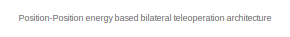
[diagram: root canvas - part 1/4, top left region]
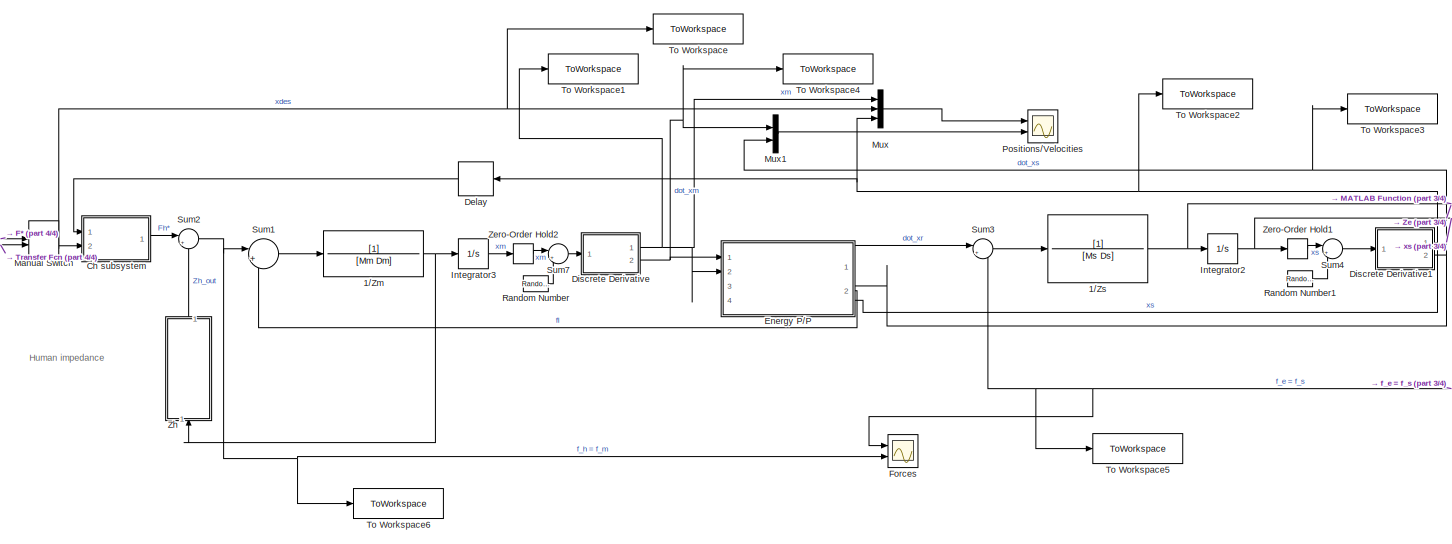
[diagram: root canvas - part 2/4, center side, full height]
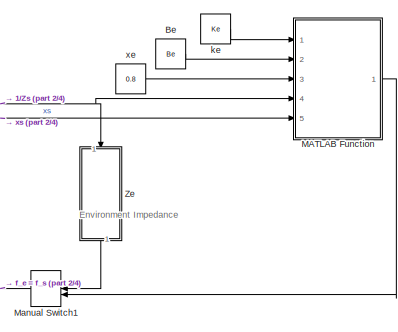
[diagram: root canvas - part 3/4, middle right region]
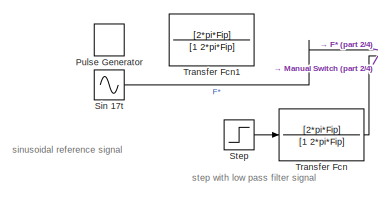
[diagram: root canvas - part 4/4, middle left region]
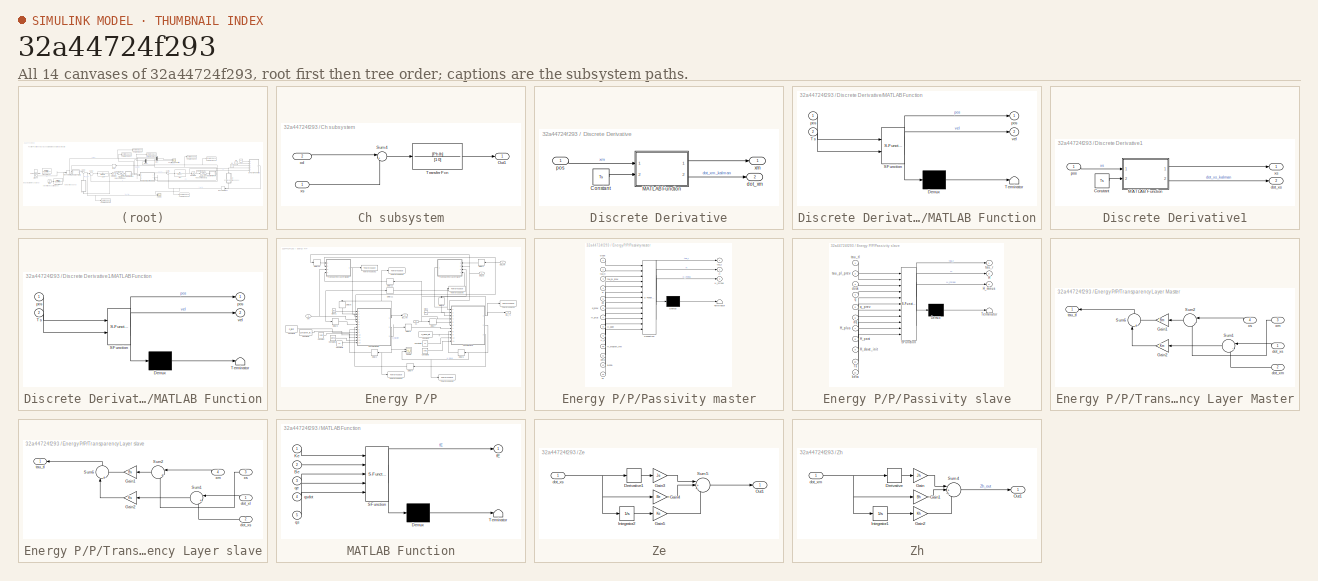
[diagram: thumbnail index - all 14 canvases of the model, root first then tree order]
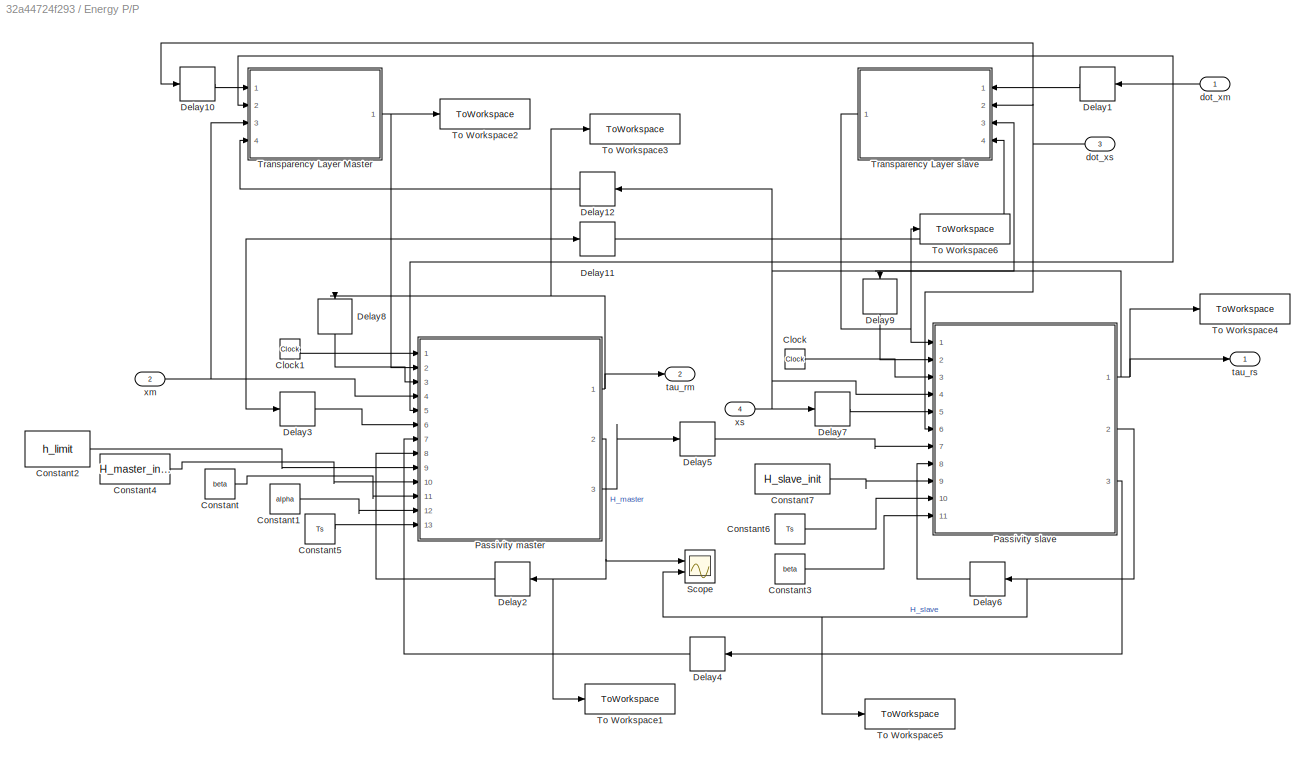
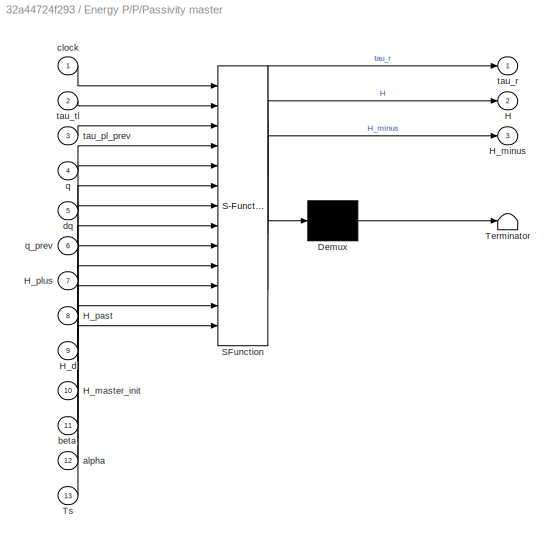
MODEL slx_32a44724f293
KIND model
CONFIG AbsTol = auto
CONFIG EnableMultiTasking = off
CONFIG FixedStep = Ts
CONFIG MaxStep = auto
CONFIG MinStep = auto
CONFIG RelTol = 1e-3
CONFIG SampleTimeConstraint = Unconstrained
CONFIG SolverName = FixedStepAuto
CONFIG StartTime = 0.0
CONFIG StopTime = 30
BLOCK [TransferFcn] 1//Zm
  Denominator = [Mm Dm]
  NameLocation = top
BLOCK [TransferFcn] 1//Zs
  Denominator = [Ms Ds]
  NameLocation = top
BLOCK [Constant] Be
  NameLocation = top
  Value = Be
BLOCK [SubSystem] Ch subsystem
  Ports = [2, 1]
  RequestExecContextInheritance = off
BLOCK [Outport] Ch subsystem/Out1
BLOCK [Sum] Ch subsystem/Sum4
  Inputs = |+-
  Ports = [2, 1]
BLOCK [TransferFcn] Ch subsystem/Transfer Fcn
  Denominator = [1 0]
  Numerator = [Ph Ih]
BLOCK [Inport] Ch subsystem/xd
  Port = 2
BLOCK [Inport] Ch subsystem/xs
BLOCK [Delay] Delay
  DelayLength = delay
  InputPortMap = u0
  NameLocation = top
  Ports = [1, 1]
  SampleTime = Ts
BLOCK [SubSystem] Discrete Derivative
  Ports = [1, 2]
  RequestExecContextInheritance = off
BLOCK [Constant] Discrete Derivative/Constant
  Value = Ts
BLOCK [SubSystem] Discrete Derivative/MATLAB Function
  ErrorFcn = Stateflow.Translate.translate
  PermitHierarchicalResolution = ExplicitOnly
  Ports = [2, 2]
  RequestExecContextInheritance = off
  SFBlockType = MATLAB Function
  TreatAsAtomicUnit = on
BLOCK [Demux] Discrete Derivative/MATLAB Function/ Demux 
  Outputs = 1
  Ports = [1, 1]
BLOCK [S-Function] Discrete Derivative/MATLAB Function/ SFunction 
  EnableBusSupport = on
  FunctionName = sf_sfun
  PortCounts = [2 3]
  Ports = [2, 3]
  SFcnIsStateOwnerBlock = off
  SFunctionDeploymentMode = off
  Tag = Stateflow S-Function 4
BLOCK [Terminator] Discrete Derivative/MATLAB Function/ Terminator 
BLOCK [Inport] Discrete Derivative/MATLAB Function/Ts
  Port = 2
BLOCK [Outport] Discrete Derivative/MATLAB Function/pos
BLOCK [Inport] Discrete Derivative/MATLAB Function/pos 
BLOCK [Outport] Discrete Derivative/MATLAB Function/vel
  Port = 2
BLOCK [Outport] Discrete Derivative/dot_xm
  Port = 2
BLOCK [Inport] Discrete Derivative/pos
BLOCK [Outport] Discrete Derivative/xm
BLOCK [SubSystem] Discrete Derivative1
  Ports = [1, 2]
  RequestExecContextInheritance = off
BLOCK [Constant] Discrete Derivative1/Constant
  Value = Ts
BLOCK [SubSystem] Discrete Derivative1/MATLAB Function
  ErrorFcn = Stateflow.Translate.translate
  PermitHierarchicalResolution = ExplicitOnly
  Ports = [2, 2]
  RequestExecContextInheritance = off
  SFBlockType = MATLAB Function
  TreatAsAtomicUnit = on
BLOCK [Demux] Discrete Derivative1/MATLAB Function/ Demux 
  Outputs = 1
  Ports = [1, 1]
BLOCK [S-Function] Discrete Derivative1/MATLAB Function/ SFunction 
  EnableBusSupport = on
  FunctionName = sf_sfun
  PortCounts = [2 3]
  Ports = [2, 3]
  SFcnIsStateOwnerBlock = off
  SFunctionDeploymentMode = off
  Tag = Stateflow S-Function 5
BLOCK [Terminator] Discrete Derivative1/MATLAB Function/ Terminator 
BLOCK [Inport] Discrete Derivative1/MATLAB Function/Ts
  Port = 2
BLOCK [Outport] Discrete Derivative1/MATLAB Function/pos
BLOCK [Inport] Discrete Derivative1/MATLAB Function/pos 
BLOCK [Outport] Discrete Derivative1/MATLAB Function/vel
  Port = 2
BLOCK [Outport] Discrete Derivative1/dot_xs
  Port = 2
BLOCK [Inport] Discrete Derivative1/pos
BLOCK [Outport] Discrete Derivative1/xs
BLOCK [SubSystem] Energy P//P
  PortSchema = {"entries":[{"content":{"sides":[{"content":{"connectorIds":["In1","In2"]},"type":"ConnectorPlacement.EquallySpacedRectSide","uuid":"f2b5b233-4bc9-48fa-8c02-3c8bfabc8edf"},{"content":{"connectorIds":["Out1","In3","In4","Out2"],"side":"RIGHT"},"type":"ConnectorPlacement.EquallySpacedRectSide","uuid":"567bdcc6-c695-4210-9521-fb074471be82"},{"content":{"connectorIds":[],"side":"TOP"},"type":"Connecto...<+409ch>
  Ports = [4, 2]
  RequestExecContextInheritance = off
BLOCK [Clock] Energy P//P/Clock
BLOCK [Clock] Energy P//P/Clock1
BLOCK [Constant] Energy P//P/Constant
  Value = beta
BLOCK [Constant] Energy P//P/Constant1
  Value = alpha
BLOCK [Constant] Energy P//P/Constant2
  Value = h_limit
BLOCK [Constant] Energy P//P/Constant3
  Value = beta
BLOCK [Constant] Energy P//P/Constant4
  Value = H_master_init
BLOCK [Constant] Energy P//P/Constant5
  Value = Ts
BLOCK [Constant] Energy P//P/Constant6
  Value = Ts
BLOCK [Constant] Energy P//P/Constant7
  Value = H_slave_init
BLOCK [Delay] Energy P//P/Delay1
  DelayLength = delay
  InputPortMap = u0
  NameLocation = top
  Ports = [1, 1]
  SampleTime = Ts
BLOCK [Delay] Energy P//P/Delay10
  DelayLength = delay
  InputPortMap = u0
  Ports = [1, 1]
  SampleTime = Ts
BLOCK [Delay] Energy P//P/Delay11
  DelayLength = delay
  InputPortMap = u0
  Ports = [1, 1]
  SampleTime = Ts
BLOCK [Delay] Energy P//P/Delay12
  DelayLength = delay
  InputPortMap = u0
  NameLocation = top
  Ports = [1, 1]
  SampleTime = Ts
BLOCK [Delay] Energy P//P/Delay2
  DelayLength = 1
  InputPortMap = u0
  NameLocation = top
  Ports = [1, 1]
  SampleTime = Ts
BLOCK [Delay] Energy P//P/Delay3
  DelayLength = 1
  InputPortMap = u0
  Ports = [1, 1]
  SampleTime = Ts
BLOCK [Delay] Energy P//P/Delay4
  DelayLength = delay
  InputPortMap = u0
  NameLocation = top
  Ports = [1, 1]
  SampleTime = Ts
BLOCK [Delay] Energy P//P/Delay5
  DelayLength = delay
  InputPortMap = u0
  Ports = [1, 1]
  SampleTime = Ts
BLOCK [Delay] Energy P//P/Delay6
  DelayLength = 1
  InputPortMap = u0
  NameLocation = top
  Ports = [1, 1]
  SampleTime = Ts
BLOCK [Delay] Energy P//P/Delay7
  DelayLength = 1
  InputPortMap = u0
  Ports = [1, 1]
  SampleTime = Ts
BLOCK [Delay] Energy P//P/Delay8
  DelayLength = 1
  InputPortMap = u0
  NameLocation = left
  Ports = [1, 1]
  SampleTime = Ts
BLOCK [Delay] Energy P//P/Delay9
  DelayLength = 1
  InputPortMap = u0
  NameLocation = left
  Ports = [1, 1]
  SampleTime = Ts
BLOCK [SubSystem] Energy P//P/Passivity master
  ErrorFcn = Stateflow.Translate.translate
  PermitHierarchicalResolution = ExplicitOnly
  Ports = [13, 3]
  RequestExecContextInheritance = off
  SFBlockType = MATLAB Function
  TreatAsAtomicUnit = on
BLOCK [Demux] Energy P//P/Passivity master/ Demux 
  Outputs = 1
  Ports = [1, 1]
BLOCK [S-Function] Energy P//P/Passivity master/ SFunction 
  EnableBusSupport = on
  FunctionName = sf_sfun
  PortCounts = [13 4]
  Ports = [13, 4]
  SFcnIsStateOwnerBlock = off
  SFunctionDeploymentMode = off
  Tag = Stateflow S-Function 1
BLOCK [Terminator] Energy P//P/Passivity master/ Terminator 
BLOCK [Outport] Energy P//P/Passivity master/H
  Port = 2
BLOCK [Inport] Energy P//P/Passivity master/H_d
  Port = 9
BLOCK [Inport] Energy P//P/Passivity master/H_master_init
  Port = 10
BLOCK [Outport] Energy P//P/Passivity master/H_minus
  Port = 3
BLOCK [Inport] Energy P//P/Passivity master/H_past
  Port = 8
BLOCK [Inport] Energy P//P/Passivity master/H_plus
  Port = 7
BLOCK [Inport] Energy P//P/Passivity master/Ts
  Port = 13
BLOCK [Inport] Energy P//P/Passivity master/alpha
  Port = 12
BLOCK [Inport] Energy P//P/Passivity master/beta
  Port = 11
BLOCK [Inport] Energy P//P/Passivity master/clock
BLOCK [Inport] Energy P//P/Passivity master/dq
  Port = 5
BLOCK [Inport] Energy P//P/Passivity master/q
  Port = 4
BLOCK [Inport] Energy P//P/Passivity master/q_prev
  Port = 6
BLOCK [Inport] Energy P//P/Passivity master/tau_pl_prev
  Port = 3
BLOCK [Outport] Energy P//P/Passivity master/tau_r
BLOCK [Inport] Energy P//P/Passivity master/tau_tl
  Port = 2
BLOCK [SubSystem] Energy P//P/Passivity slave
  ErrorFcn = Stateflow.Translate.translate
  PermitHierarchicalResolution = ExplicitOnly
  Ports = [11, 3]
  RequestExecContextInheritance = off
  SFBlockType = MATLAB Function
  TreatAsAtomicUnit = on
BLOCK [Demux] Energy P//P/Passivity slave/ Demux 
  Outputs = 1
  Ports = [1, 1]
BLOCK [S-Function] Energy P//P/Passivity slave/ SFunction 
  EnableBusSupport = on
  FunctionName = sf_sfun
  PortCounts = [11 4]
  Ports = [11, 4]
  SFcnIsStateOwnerBlock = off
  SFunctionDeploymentMode = off
  Tag = Stateflow S-Function 3
BLOCK [Terminator] Energy P//P/Passivity slave/ Terminator 
BLOCK [Outport] Energy P//P/Passivity slave/H
  Port = 2
BLOCK [Outport] Energy P//P/Passivity slave/H_minus
  Port = 3
BLOCK [Inport] Energy P//P/Passivity slave/H_past
  Port = 8
BLOCK [Inport] Energy P//P/Passivity slave/H_plus
  Port = 7
BLOCK [Inport] Energy P//P/Passivity slave/H_slave_init
  Port = 9
BLOCK [Inport] Energy P//P/Passivity slave/Ts
  Port = 10
BLOCK [Inport] Energy P//P/Passivity slave/beta
  Port = 11
BLOCK [Inport] Energy P//P/Passivity slave/clock
  Port = 3
BLOCK [Inport] Energy P//P/Passivity slave/dq
  Port = 6
BLOCK [Inport] Energy P//P/Passivity slave/q
  Port = 4
BLOCK [Inport] Energy P//P/Passivity slave/q_prev
  Port = 5
BLOCK [Inport] Energy P//P/Passivity slave/tau_pl_prev
  Port = 2
BLOCK [Outport] Energy P//P/Passivity slave/tau_r
BLOCK [Inport] Energy P//P/Passivity slave/tau_tl
BLOCK [Scope] Energy P//P/Scope
  Floating = off
  NumInputPorts = 2
  Ports = [2]
  ScopeSpecificationString = Simulink.scopes.TimeScopeBlockCfg('CurrentConfiguration', extmgr.ConfigurationSet(extmgr.Configuration('Core','General UI',true),extmgr.Configuration('Core','Source UI',true),extmgr.Configuration('Sources','WiredSimulink',true,'DataLoggingVariableName','ScopeData1'),extmgr.Configuration('Visuals','Time Domain',true,'SerializedDisplays',{struct('MinYLimReal','-372.95583','MaxYLimReal','42.32843','Y...<+1506ch>
BLOCK [ToWorkspace] Energy P//P/To Workspace1
  FixptAsFi = on
  MaxDataPoints = inf
  Ports = [1]
  SampleTime = -1
  SaveFormat = Timeseries
  VariableName = H_master
BLOCK [ToWorkspace] Energy P//P/To Workspace2
  FixptAsFi = on
  MaxDataPoints = inf
  Ports = [1]
  SampleTime = -1
  SaveFormat = Timeseries
  VariableName = tau_tl_master
BLOCK [ToWorkspace] Energy P//P/To Workspace3
  FixptAsFi = on
  MaxDataPoints = inf
  Ports = [1]
  SampleTime = -1
  SaveFormat = Timeseries
  VariableName = tau_r_master
BLOCK [ToWorkspace] Energy P//P/To Workspace4
  FixptAsFi = on
  MaxDataPoints = inf
  Ports = [1]
  SampleTime = -1
  SaveFormat = Timeseries
  VariableName = tau_r_slave
BLOCK [ToWorkspace] Energy P//P/To Workspace5
  FixptAsFi = on
  MaxDataPoints = inf
  Ports = [1]
  SampleTime = -1
  SaveFormat = Timeseries
  VariableName = H_slave
BLOCK [ToWorkspace] Energy P//P/To Workspace6
  FixptAsFi = on
  MaxDataPoints = inf
  Ports = [1]
  SampleTime = -1
  SaveFormat = Timeseries
  VariableName = tau_tl_slave
BLOCK [SubSystem] Energy P//P/Transparency Layer Master
  Ports = [4, 1]
  RequestExecContextInheritance = off
BLOCK [Gain] Energy P//P/Transparency Layer Master/Gain1
  Gain = Bm
  NameLocation = top
BLOCK [Gain] Energy P//P/Transparency Layer Master/Gain2
  Gain = Km
  NameLocation = top
BLOCK [Sum] Energy P//P/Transparency Layer Master/Sum1
  Inputs = |-+
  NameLocation = top
  Ports = [2, 1]
BLOCK [Sum] Energy P//P/Transparency Layer Master/Sum2
  Inputs = |-+
  NameLocation = top
  Ports = [2, 1]
BLOCK [Sum] Energy P//P/Transparency Layer Master/Sum6
  Inputs = |++
  NameLocation = right
  Ports = [2, 1]
BLOCK [Inport] Energy P//P/Transparency Layer Master/dot_xm
  NameLocation = top
  Port = 2
BLOCK [Inport] Energy P//P/Transparency Layer Master/dot_xs
  NameLocation = top
BLOCK [Outport] Energy P//P/Transparency Layer Master/tau_tl
  NameLocation = top
BLOCK [Inport] Energy P//P/Transparency Layer Master/xm
  NameLocation = top
  Port = 3
BLOCK [Inport] Energy P//P/Transparency Layer Master/xs
  NameLocation = top
  Port = 4
BLOCK [SubSystem] Energy P//P/Transparency Layer slave
  NameLocation = top
  Ports = [4, 1]
  RequestExecContextInheritance = off
BLOCK [Gain] Energy P//P/Transparency Layer slave/Gain1
  Gain = Bs
  NameLocation = top
BLOCK [Gain] Energy P//P/Transparency Layer slave/Gain2
  Gain = Ks
  NameLocation = top
BLOCK [Sum] Energy P//P/Transparency Layer slave/Sum1
  Inputs = |+-
  NameLocation = top
  Ports = [2, 1]
BLOCK [Sum] Energy P//P/Transparency Layer slave/Sum2
  Inputs = |+-
  NameLocation = top
  Ports = [2, 1]
BLOCK [Sum] Energy P//P/Transparency Layer slave/Sum6
  Inputs = |++
  NameLocation = right
  Ports = [2, 1]
BLOCK [Inport] Energy P//P/Transparency Layer slave/dot_xl
  NameLocation = top
BLOCK [Inport] Energy P//P/Transparency Layer slave/dot_xs
  NameLocation = top
  Port = 2
BLOCK [Outport] Energy P//P/Transparency Layer slave/tau_tl
  NameLocation = top
BLOCK [Inport] Energy P//P/Transparency Layer slave/xm
  NameLocation = top
  Port = 4
BLOCK [Inport] Energy P//P/Transparency Layer slave/xs
  NameLocation = top
  Port = 3
BLOCK [Inport] Energy P//P/dot_xm
  NameLocation = top
BLOCK [Inport] Energy P//P/dot_xs
  NameLocation = top
  Port = 3
BLOCK [Outport] Energy P//P/tau_rm
  Port = 2
BLOCK [Outport] Energy P//P/tau_rs
BLOCK [Inport] Energy P//P/xm
  Port = 2
BLOCK [Inport] Energy P//P/xs
  Port = 4
BLOCK [Scope] Forces
  Floating = off
  NumInputPorts = 2
  Ports = [2]
  ScopeSpecificationString = Simulink.scopes.TimeScopeBlockCfg('CurrentConfiguration', extmgr.ConfigurationSet(extmgr.Configuration('Core','General UI',true),extmgr.Configuration('Core','Source UI',true),extmgr.Configuration('Sources','WiredSimulink',true,'DataLoggingVariableName','ScopeData1'),extmgr.Configuration('Visuals','Time Domain',true,'SerializedDisplays',{struct('MinYLimReal','-440.9297','MaxYLimReal','438.96432','Y...<+1504ch>
BLOCK [Integrator] Integrator2
  Ports = [1, 1]
BLOCK [Integrator] Integrator3
  Ports = [1, 1]
BLOCK [SubSystem] MATLAB Function
  ErrorFcn = Stateflow.Translate.translate
  PermitHierarchicalResolution = ExplicitOnly
  Ports = [5, 1]
  RequestExecContextInheritance = off
  SFBlockType = MATLAB Function
  TreatAsAtomicUnit = on
BLOCK [Demux] MATLAB Function/ Demux 
  Outputs = 1
  Ports = [1, 1]
BLOCK [S-Function] MATLAB Function/ SFunction 
  EnableBusSupport = on
  FunctionName = sf_sfun
  PortCounts = [5 2]
  Ports = [5, 2]
  SFcnIsStateOwnerBlock = off
  SFunctionDeploymentMode = off
  Tag = Stateflow S-Function 2
BLOCK [Terminator] MATLAB Function/ Terminator 
BLOCK [Inport] MATLAB Function/Be
  Port = 2
BLOCK [Inport] MATLAB Function/Ke
BLOCK [Outport] MATLAB Function/fE
BLOCK [Inport] MATLAB Function/qe
  Port = 3
BLOCK [Inport] MATLAB Function/qs
  Port = 5
BLOCK [Inport] MATLAB Function/qsdot
  Port = 4
BLOCK [ManualSwitch] Manual Switch
BLOCK [ManualSwitch] Manual Switch1
  CurrentSetting = 0
  NameLocation = top
BLOCK [Mux] Mux
  DisplayOption = bar
  Inputs = 3
  Ports = [3, 1]
BLOCK [Mux] Mux1
  DisplayOption = bar
  Inputs = 2
  Ports = [2, 1]
BLOCK [Scope] Positions//Velocities
  Floating = off
  NumInputPorts = 2
  Ports = [2]
  ScopeSpecificationString = Simulink.scopes.TimeScopeBlockCfg('CurrentConfiguration', extmgr.ConfigurationSet(extmgr.Configuration('Core','General UI',true),extmgr.Configuration('Core','Source UI',true),extmgr.Configuration('Sources','WiredSimulink',true),extmgr.Configuration('Visuals','Time Domain',true,'SerializedDisplays',{struct('MinYLimReal','-1.25','MaxYLimReal','1.25','YLabelReal','','MinYLimMag','0.00000','MaxYLimMag...<+2154ch>
BLOCK [DiscretePulseGenerator] Pulse Generator
  Amplitude = A
  PhaseDelay = 1
  Ports = [0, 1]
  PulseType = Time based
  PulseWidth = 50
BLOCK [RandomNumber] Random Number
  SampleTime = Ts
  Variance = VarianceVelocities
BLOCK [RandomNumber] Random Number1
  SampleTime = Ts
  Variance = VarianceVelocities
BLOCK [Sin] Sin 17t
  Amplitude = A
  Frequency = 2*pi*Fc
  Ports = [0, 1]
  SampleTime = 0
BLOCK [Step] Step
  After = A
  SampleTime = 0
BLOCK [Sum] Sum1
  Inputs = |+-
  Ports = [2, 1]
BLOCK [Sum] Sum2
  Inputs = |+-
  Ports = [2, 1]
BLOCK [Sum] Sum3
  Inputs = |+-
  Ports = [2, 1]
BLOCK [Sum] Sum4
  Inputs = |++
  Ports = [2, 1]
BLOCK [Sum] Sum7
  Inputs = |++
  Ports = [2, 1]
BLOCK [ToWorkspace] To Workspace
  FixptAsFi = on
  MaxDataPoints = inf
  Ports = [1]
  SampleTime = -1
  SaveFormat = Timeseries
  VariableName = xd
BLOCK [ToWorkspace] To Workspace1
  FixptAsFi = on
  MaxDataPoints = inf
  Ports = [1]
  SampleTime = -1
  SaveFormat = Timeseries
  VariableName = xm
BLOCK [ToWorkspace] To Workspace2
  FixptAsFi = on
  MaxDataPoints = inf
  Ports = [1]
  SampleTime = -1
  SaveFormat = Timeseries
  VariableName = xs
BLOCK [ToWorkspace] To Workspace3
  FixptAsFi = on
  MaxDataPoints = inf
  Ports = [1]
  SampleTime = -1
  SaveFormat = Timeseries
  VariableName = dot_xs
BLOCK [ToWorkspace] To Workspace4
  FixptAsFi = on
  MaxDataPoints = inf
  Ports = [1]
  SampleTime = -1
  SaveFormat = Timeseries
  VariableName = dot_xm
BLOCK [ToWorkspace] To Workspace5
  FixptAsFi = on
  MaxDataPoints = inf
  Ports = [1]
  SampleTime = -1
  SaveFormat = Timeseries
  VariableName = fe
BLOCK [ToWorkspace] To Workspace6
  FixptAsFi = on
  MaxDataPoints = inf
  Ports = [1]
  SampleTime = -1
  SaveFormat = Timeseries
  VariableName = fh
BLOCK [TransferFcn] Transfer Fcn
  Denominator = [1 2*pi*Fip]
  Numerator = [2*pi*Fip]
BLOCK [TransferFcn] Transfer Fcn1
  Denominator = [1 2*pi*Fip]
  Numerator = [2*pi*Fip]
BLOCK [SubSystem] Ze
  NameLocation = left
  Ports = [1, 1]
  RequestExecContextInheritance = off
BLOCK [Derivative] Ze/Derivative1
BLOCK [Gain] Ze/Gain3
  Gain = Je
BLOCK [Gain] Ze/Gain4
  Gain = Be
BLOCK [Gain] Ze/Gain5
  Gain = Ke
BLOCK [Integrator] Ze/Integrator2
  Ports = [1, 1]
BLOCK [Outport] Ze/Out1
BLOCK [Sum] Ze/Sum5
  Inputs = |+++
  Ports = [3, 1]
BLOCK [Inport] Ze/dot_xs
BLOCK [ZeroOrderHold] Zero-Order Hold1
  SampleTime = Ts
BLOCK [ZeroOrderHold] Zero-Order Hold2
  SampleTime = Ts
BLOCK [SubSystem] Zh
  NameLocation = right
  Ports = [1, 1]
  RequestExecContextInheritance = off
BLOCK [Derivative] Zh/Derivative
BLOCK [Gain] Zh/Gain
  Gain = Jh
BLOCK [Gain] Zh/Gain1
  Gain = Bh
BLOCK [Gain] Zh/Gain2
  Gain = Kh
BLOCK [Integrator] Zh/Integrator1
  Ports = [1, 1]
BLOCK [Outport] Zh/Out1
BLOCK [Sum] Zh/Sum4
  Inputs = |+++
  Ports = [3, 1]
BLOCK [Inport] Zh/dot_xm
BLOCK [Constant] ke
  NameLocation = top
  Value = Ke
BLOCK [Constant] xe
  NameLocation = top
  Value = 0.8
ANNOTATION (root): sinusoidal reference signal
ANNOTATION (root): step with low pass filter signal
ANNOTATION (root): Position-Position energy based bilateral teleoperation architecture
ANNOTATION (root): Environment Impedance
ANNOTATION (root): Human impedance
NET 1//Zm:1 -> Integrator3:1, Zh:1
NET 1//Zs:1 -> Integrator2:1, MATLAB Function:4, Ze:1
LINE Be:1 -> MATLAB Function:2
LINE Ch subsystem/Sum4:1 -> Ch subsystem/Transfer Fcn:1
LINE Ch subsystem/Transfer Fcn:1 -> Ch subsystem/Out1:1
LINE Ch subsystem/xd:1 -> Ch subsystem/Sum4:1
LINE Ch subsystem/xs:1 -> Ch subsystem/Sum4:2
LINE Ch subsystem:1 -> Sum2:1
LINE Delay:1 -> Ch subsystem:1
LINE Discrete Derivative/Constant:1 -> Discrete Derivative/MATLAB Function:2
LINE Discrete Derivative/MATLAB Function:1 -> Discrete Derivative/xm:1
LINE Discrete Derivative/MATLAB Function:2 -> Discrete Derivative/dot_xm:1
LINE Discrete Derivative/pos:1 -> Discrete Derivative/MATLAB Function:1
LINE Discrete Derivative1/Constant:1 -> Discrete Derivative1/MATLAB Function:2
LINE Discrete Derivative1/MATLAB Function:1 -> Discrete Derivative1/xs:1
LINE Discrete Derivative1/MATLAB Function:2 -> Discrete Derivative1/dot_xs:1
LINE Discrete Derivative1/pos:1 -> Discrete Derivative1/MATLAB Function:1
NET Discrete Derivative1:1 -> Delay:1, Energy P//P:4, Mux:3, To Workspace2:1
NET Discrete Derivative1:2 -> Energy P//P:3, Mux1:2, To Workspace3:1
NET Discrete Derivative:1 -> Energy P//P:2, Mux:1, To Workspace1:1
NET Discrete Derivative:2 -> Energy P//P:1, Mux1:1, To Workspace4:1
LINE Energy P//P/Clock1:1 -> Energy P//P/Passivity master:1
LINE Energy P//P/Clock:1 -> Energy P//P/Passivity slave:3
LINE Energy P//P/Constant1:1 -> Energy P//P/Passivity master:12
LINE Energy P//P/Constant2:1 -> Energy P//P/Passivity master:9
LINE Energy P//P/Constant3:1 -> Energy P//P/Passivity slave:11
LINE Energy P//P/Constant4:1 -> Energy P//P/Passivity master:10
LINE Energy P//P/Constant5:1 -> Energy P//P/Passivity master:13
LINE Energy P//P/Constant6:1 -> Energy P//P/Passivity slave:10
LINE Energy P//P/Constant7:1 -> Energy P//P/Passivity slave:9
LINE Energy P//P/Constant:1 -> Energy P//P/Passivity master:11
LINE Energy P//P/Delay10:1 -> Energy P//P/Transparency Layer Master:1
LINE Energy P//P/Delay11:1 -> Energy P//P/Transparency Layer slave:4
LINE Energy P//P/Delay12:1 -> Energy P//P/Transparency Layer Master:4
LINE Energy P//P/Delay1:1 -> Energy P//P/Transparency Layer slave:1
LINE Energy P//P/Delay2:1 -> Energy P//P/Passivity master:8
LINE Energy P//P/Delay3:1 -> Energy P//P/Passivity master:6
LINE Energy P//P/Delay4:1 -> Energy P//P/Passivity master:7
LINE Energy P//P/Delay5:1 -> Energy P//P/Passivity slave:7
LINE Energy P//P/Delay6:1 -> Energy P//P/Passivity slave:8
LINE Energy P//P/Delay7:1 -> Energy P//P/Passivity slave:5
LINE Energy P//P/Delay8:1 -> Energy P//P/Passivity master:3
LINE Energy P//P/Delay9:1 -> Energy P//P/Passivity slave:2
NET Energy P//P/Passivity master:1 -> Energy P//P/Delay8:1, Energy P//P/To Workspace3:1, Energy P//P/tau_rm:1
NET Energy P//P/Passivity master:2 -> Energy P//P/Delay2:1, Energy P//P/Scope:1, Energy P//P/To Workspace1:1
LINE Energy P//P/Passivity master:3 -> Energy P//P/Delay5:1
NET Energy P//P/Passivity slave:1 -> Energy P//P/Delay9:1, Energy P//P/To Workspace4:1, Energy P//P/tau_rs:1
NET Energy P//P/Passivity slave:2 -> Energy P//P/Delay6:1, Energy P//P/Scope:2, Energy P//P/To Workspace5:1
LINE Energy P//P/Passivity slave:3 -> Energy P//P/Delay4:1
LINE Energy P//P/Transparency Layer Master/Gain1:1 -> Energy P//P/Transparency Layer Master/Sum6:2
LINE Energy P//P/Transparency Layer Master/Gain2:1 -> Energy P//P/Transparency Layer Master/Sum6:1
LINE Energy P//P/Transparency Layer Master/Sum1:1 -> Energy P//P/Transparency Layer Master/Gain2:1
LINE Energy P//P/Transparency Layer Master/Sum2:1 -> Energy P//P/Transparency Layer Master/Gain1:1
LINE Energy P//P/Transparency Layer Master/Sum6:1 -> Energy P//P/Transparency Layer Master/tau_tl:1
LINE Energy P//P/Transparency Layer Master/dot_xm:1 -> Energy P//P/Transparency Layer Master/Sum1:2
LINE Energy P//P/Transparency Layer Master/dot_xs:1 -> Energy P//P/Transparency Layer Master/Sum1:1
LINE Energy P//P/Transparency Layer Master/xm:1 -> Energy P//P/Transparency Layer Master/Sum2:2
LINE Energy P//P/Transparency Layer Master/xs:1 -> Energy P//P/Transparency Layer Master/Sum2:1
NET Energy P//P/Transparency Layer Master:1 -> Energy P//P/Passivity master:2, Energy P//P/To Workspace2:1
LINE Energy P//P/Transparency Layer slave/Gain1:1 -> Energy P//P/Transparency Layer slave/Sum6:2
LINE Energy P//P/Transparency Layer slave/Gain2:1 -> Energy P//P/Transparency Layer slave/Sum6:1
LINE Energy P//P/Transparency Layer slave/Sum1:1 -> Energy P//P/Transparency Layer slave/Gain2:1
LINE Energy P//P/Transparency Layer slave/Sum2:1 -> Energy P//P/Transparency Layer slave/Gain1:1
LINE Energy P//P/Transparency Layer slave/Sum6:1 -> Energy P//P/Transparency Layer slave/tau_tl:1
LINE Energy P//P/Transparency Layer slave/dot_xl:1 -> Energy P//P/Transparency Layer slave/Sum1:1
LINE Energy P//P/Transparency Layer slave/dot_xs:1 -> Energy P//P/Transparency Layer slave/Sum1:2
LINE Energy P//P/Transparency Layer slave/xm:1 -> Energy P//P/Transparency Layer slave/Sum2:1
LINE Energy P//P/Transparency Layer slave/xs:1 -> Energy P//P/Transparency Layer slave/Sum2:2
NET Energy P//P/Transparency Layer slave:1 -> Energy P//P/Passivity slave:1, Energy P//P/To Workspace6:1
NET Energy P//P/dot_xm:1 -> Energy P//P/Delay1:1, Energy P//P/Passivity master:5, Energy P//P/Transparency Layer Master:2
NET Energy P//P/dot_xs:1 -> Energy P//P/Delay10:1, Energy P//P/Passivity slave:6, Energy P//P/Transparency Layer slave:2
NET Energy P//P/xm:1 -> Energy P//P/Delay11:1, Energy P//P/Delay3:1, Energy P//P/Passivity master:4, Energy P//P/Transparency Layer Master:3
NET Energy P//P/xs:1 -> Energy P//P/Delay12:1, Energy P//P/Delay7:1, Energy P//P/Passivity slave:4, Energy P//P/Transparency Layer slave:3
LINE Energy P//P:1 -> Sum3:1
LINE Energy P//P:2 -> Sum1:2
NET Integrator2:1 -> MATLAB Function:5, Zero-Order Hold1:1
LINE Integrator3:1 -> Zero-Order Hold2:1
LINE MATLAB Function:1 -> Manual Switch1:2
NET Manual Switch1:1 -> Forces:1, Sum3:2, To Workspace5:1
NET Manual Switch:1 -> Ch subsystem:2, Mux:2, To Workspace:1
LINE Mux1:1 -> Positions//Velocities:2
LINE Mux:1 -> Positions//Velocities:1
LINE Random Number1:1 -> Sum4:2
LINE Random Number:1 -> Sum7:2
LINE Sin 17t:1 -> Manual Switch:1
LINE Step:1 -> Transfer Fcn:1
LINE Sum1:1 -> 1//Zm:1
NET Sum2:1 -> Forces:2, Sum1:1, To Workspace6:1
LINE Sum3:1 -> 1//Zs:1
LINE Sum4:1 -> Discrete Derivative1:1
LINE Sum7:1 -> Discrete Derivative:1
LINE Transfer Fcn:1 -> Manual Switch:2
LINE Ze/Derivative1:1 -> Ze/Gain3:1
LINE Ze/Gain3:1 -> Ze/Sum5:1
LINE Ze/Gain4:1 -> Ze/Sum5:2
LINE Ze/Gain5:1 -> Ze/Sum5:3
LINE Ze/Integrator2:1 -> Ze/Gain5:1
LINE Ze/Sum5:1 -> Ze/Out1:1
NET Ze/dot_xs:1 -> Ze/Derivative1:1, Ze/Gain4:1, Ze/Integrator2:1
LINE Ze:1 -> Manual Switch1:1
LINE Zero-Order Hold1:1 -> Sum4:1
LINE Zero-Order Hold2:1 -> Sum7:1
LINE Zh/Derivative:1 -> Zh/Gain:1
LINE Zh/Gain1:1 -> Zh/Sum4:2
LINE Zh/Gain2:1 -> Zh/Sum4:3
LINE Zh/Gain:1 -> Zh/Sum4:1
LINE Zh/Integrator1:1 -> Zh/Gain2:1
LINE Zh/Sum4:1 -> Zh/Out1:1
NET Zh/dot_xm:1 -> Zh/Derivative:1, Zh/Gain1:1, Zh/Integrator1:1
LINE Zh:1 -> Sum2:2
LINE ke:1 -> MATLAB Function:1
LINE xe:1 -> MATLAB Function:3
note: NET lines group one-source signal fan-out (src -> all destinations, sorted); 1:1 wires keep LINE
CHART Energy P//P/Passivity master states=1 transitions=1
  STATE_LABEL 'eML_blk_kernel()'
  STATE_LABEL 'SCRIPT:\nfunction [tau_r,H,H_minus] = passivity_master(clock, tau_tl, tau_pl_prev, q, dq, q_prev, H_plus, H_past, H_d, H_master_init, beta, alpha, Ts)\n    if clock == 0\n        H_past = H_master_init;\n        tau_pl_prev = 0; \n    end\n    \n    % Compute energy in the tank\n    delta_H = tau_pl_prev*(q - q_prev);\n    H = H_past + H_plus - delta_H;\n\n    % Computer first tau limit\n    if H <= 0 \n      ...<+580ch>'
CHART MATLAB Function states=1 transitions=1
  STATE_LABEL 'eML_blk_kernel()'
  STATE_LABEL 'SCRIPT:\nfunction fE = environment(Ke, Be, qe, qsdot, qs)\n    if qs > qe\n        fE = Ke * (qs - qe) + Be * qsdot; % Plot both contributions Ke and Be\n    else\n        fE = 0;\n    end\nend\n'
CHART Energy P//P/Passivity slave states=1 transitions=1
  STATE_LABEL 'eML_blk_kernel()'
  STATE_LABEL 'SCRIPT:\nfunction [tau_r, H, H_minus] = passivity_slave(tau_tl, tau_pl_prev, clock, q, q_prev, dq, H_plus, H_past,H_slave_init,Ts, beta)\n    if clock == 0\n        H_past = H_slave_init;\n        tau_pl_prev = 0;\n    end\n    \n    % Compute actual energy\n    delta_H = tau_pl_prev*(q - q_prev);\n    H = H_past + H_plus - delta_H;\n\n    % Compute first tau limit\n    if H <= 0 \n        tau_max_1 = 0;\n    e...<+312ch>'
CHART Discrete Derivative/MATLAB Function states=1 transitions=1
  STATE_LABEL 'eML_blk_kernel()'
  STATE_LABEL "SCRIPT:\nfunction [pos, vel] = kalman(pos, Ts)\n    persistent P A C Q R x_filter_old P_filter_old\n    if isempty(P)\n        P = 0;\n        x_filter_old=[pos; 0];\n        P_filter_old=0.1*eye(2);\n        A=[1 Ts; 0 1];\n        C=[1 0];\n        q=1000000;\n        Q=q*[Ts^2/2;Ts]*[Ts^2/2;Ts]';\n        R=1;\n    end\n\n    % Prediction step (A priori estimation)\n    x_kplus1_k = A*x_filter_old;\n    P_kplu...<+490ch>"
CHART Discrete Derivative1/MATLAB Function states=1 transitions=1
  STATE_LABEL 'eML_blk_kernel()'
  STATE_LABEL "SCRIPT:\nfunction [pos, vel] = kalman(pos, Ts)\n    persistent P A C Q R x_filter_old P_filter_old\n    if isempty(P)\n        P = 0;\n        x_filter_old=[pos; 0];\n        P_filter_old=0.1*eye(2);\n        A=[1 Ts; 0 1];\n        C=[1 0];\n        q=1000000;\n        Q=q*[Ts^2/2;Ts]*[Ts^2/2;Ts]';\n        R=1;\n    end\n\n    % Prediction step (A priori estimation)\n    x_kplus1_k = A*x_filter_old;\n    P_kplu...<+490ch>"
CHART  states=0 transitions=0
CHART  states=0 transitions=0
CHART  states=0 transitions=0
CHART  states=0 transitions=0
CHART  states=0 transitions=0
